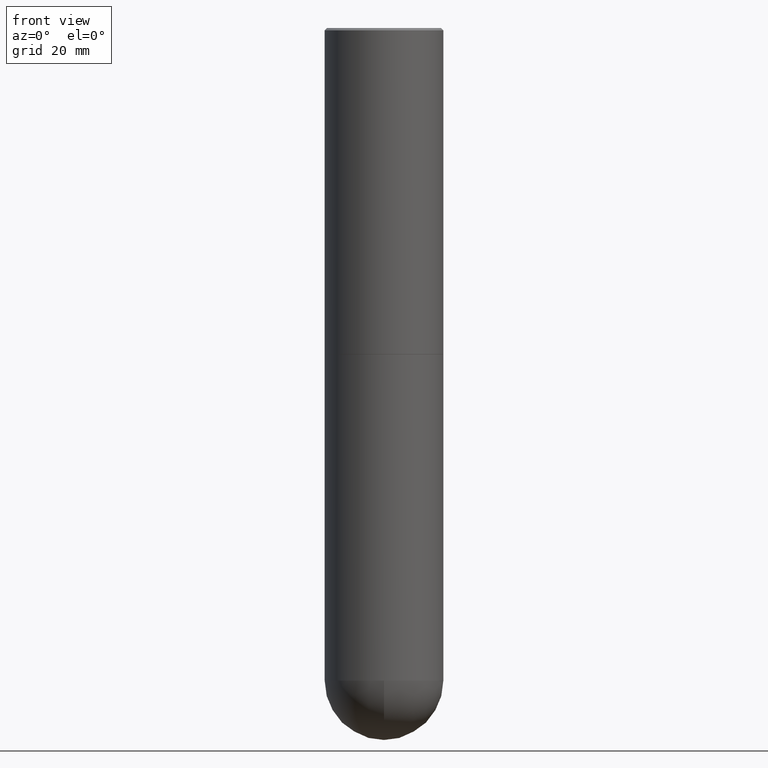
[diagram: clean part render]
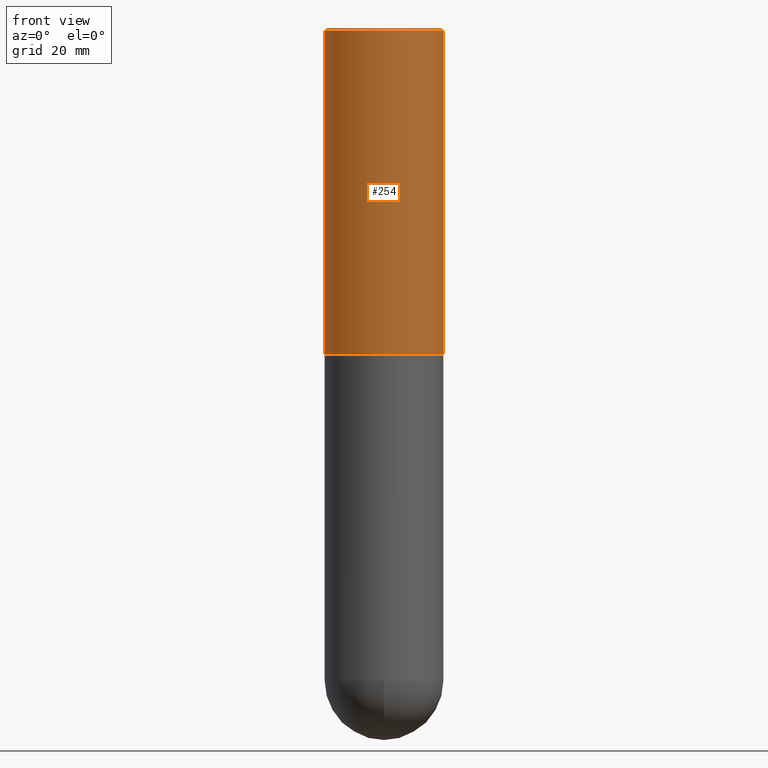
[diagram: same view with one face highlighted and labeled with its STEP entity id]
A machine part, front view. The second image highlights one B-rep face of the part: STEP entity #254.
In plain terms, the highlighted cylindrical surface (partial cylindrical patch) has radius 12.7 mm, axis along (-0, 0, 1).
Its self-contained STEP definition (entity closure, byte-faithful):
#1 = ORIENTED_EDGE ( 'NONE', *, *, #22, .F. ) ;
#22 = EDGE_CURVE ( 'NONE', #355, #329, #74, .T. ) ;
#25 = CARTESIAN_POINT ( 'NONE',  ( 0.000000000000000000, 0.000000000000000000, 0.000000000000000000 ) ) ;
#45 = DIRECTION ( 'NONE',  ( 1.000000000000000000, -6.982962677686266711E-15, 0.000000000000000000 ) ) ;
#74 = LINE ( 'NONE', #230, #266 ) ;
#75 = EDGE_CURVE ( 'NONE', #329, #221, #86, .T. ) ;
#86 = CIRCLE ( 'NONE', #130, 0.5000000000000000000 ) ;
#94 = LINE ( 'NONE', #229, #386 ) ;
#100 = CARTESIAN_POINT ( 'NONE',  ( -0.5000000000000002220, -1.281242234827832765E-15, -2.749000000000000554 ) ) ;
#114 = EDGE_CURVE ( 'NONE', #355, #383, #321, .T. ) ;
#130 = AXIS2_PLACEMENT_3D ( 'NONE', #304, #336, #45 ) ;
#155 = EDGE_LOOP ( 'NONE', ( #1, #334, #373, #261 ) ) ;
#158 = CARTESIAN_POINT ( 'NONE',  ( 0.5000000000000002220, -1.308956353932294494E-14, -2.749000000000000554 ) ) ;
#181 = FACE_OUTER_BOUND ( 'NONE', #155, .T. ) ;
#182 = DIRECTION ( 'NONE',  ( 1.000000000000000000, -6.982962677686267499E-15, 4.876176775795935793E-29 ) ) ;
#189 = AXIS2_PLACEMENT_3D ( 'NONE', #25, #406, #182 ) ;
#207 = DIRECTION ( 'NONE',  ( 1.000000000000000000, -6.982962677686267499E-15, 0.000000000000000000 ) ) ;
#221 = VERTEX_POINT ( 'NONE', #403 ) ;
#229 = CARTESIAN_POINT ( 'NONE',  ( 0.5000000000000001110, -3.491481338843134539E-15, 2.438088387897968457E-29 ) ) ;
#230 = CARTESIAN_POINT ( 'NONE',  ( -0.5000000000000001110, 3.552713678800501718E-15, -2.459467545127453732E-29 ) ) ;
#254 = ADVANCED_FACE ( 'NONE', ( #181 ), #312, .T. ) ;
#261 = ORIENTED_EDGE ( 'NONE', *, *, #75, .F. ) ;
#266 = VECTOR ( 'NONE', #360, 39.37007874015748143 ) ;
#304 = CARTESIAN_POINT ( 'NONE',  ( 4.890937612370299433E-31, -6.982962677686328587E-17, -0.02000000000000010797 ) ) ;
#309 = DIRECTION ( 'NONE',  ( -2.445468806185136597E-29, 3.491481338843145583E-15, 1.000000000000000000 ) ) ;
#312 = CYLINDRICAL_SURFACE ( 'NONE', #189, 0.5000000000000001110 ) ;
#314 = AXIS2_PLACEMENT_3D ( 'NONE', #346, #309, #207 ) ;
#321 = CIRCLE ( 'NONE', #314, 0.5000000000000002220 ) ;
#325 = CARTESIAN_POINT ( 'NONE',  ( -0.5000000000000000000, 3.421651712066270057E-15, -0.02000000000000010797 ) ) ;
#329 = VERTEX_POINT ( 'NONE', #325 ) ;
#334 = ORIENTED_EDGE ( 'NONE', *, *, #114, .T. ) ;
#336 = DIRECTION ( 'NONE',  ( -2.445468806185136597E-29, 3.491481338843145583E-15, 1.000000000000000000 ) ) ;
#337 = EDGE_CURVE ( 'NONE', #383, #221, #94, .T. ) ;
#346 = CARTESIAN_POINT ( 'NONE',  ( 6.722593748202942280E-29, -9.598082200479810007E-15, -2.749000000000000554 ) ) ;
#355 = VERTEX_POINT ( 'NONE', #100 ) ;
#360 = DIRECTION ( 'NONE',  ( -2.445468806185136877E-29, 3.491481338843145188E-15, 1.000000000000000000 ) ) ;
#373 = ORIENTED_EDGE ( 'NONE', *, *, #337, .T. ) ;
#383 = VERTEX_POINT ( 'NONE', #158 ) ;
#386 = VECTOR ( 'NONE', #390, 39.37007874015748143 ) ;
#390 = DIRECTION ( 'NONE',  ( -2.445468806185136877E-29, 3.491481338843145188E-15, 1.000000000000000000 ) ) ;
#403 = CARTESIAN_POINT ( 'NONE',  ( 0.5000000000000000000, -3.500078625662629079E-15, -0.02000000000000010797 ) ) ;
#406 = DIRECTION ( 'NONE',  ( -2.445468806185136597E-29, 3.491481338843145583E-15, 1.000000000000000000 ) ) ;